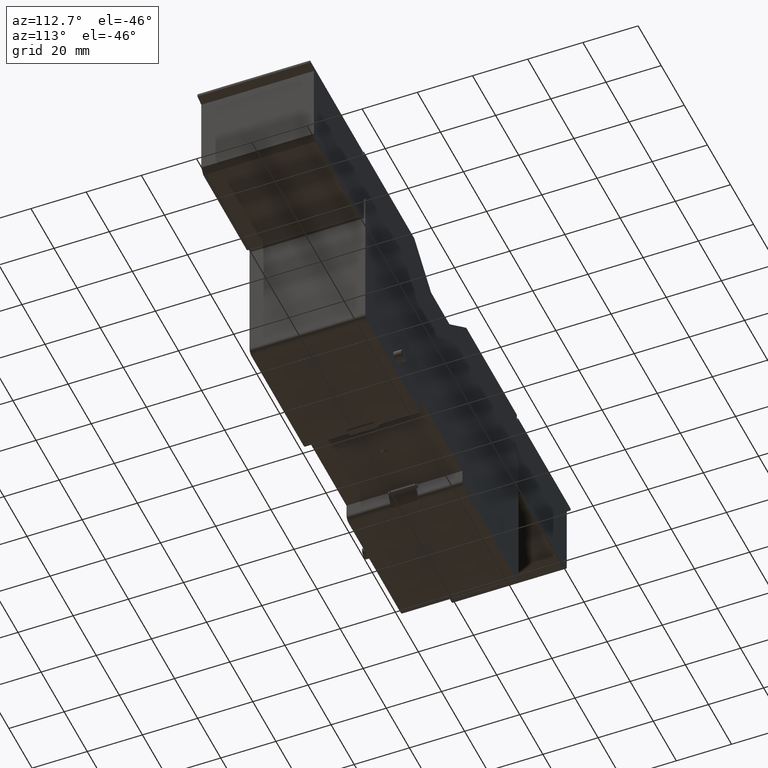
[diagram: clean part render]
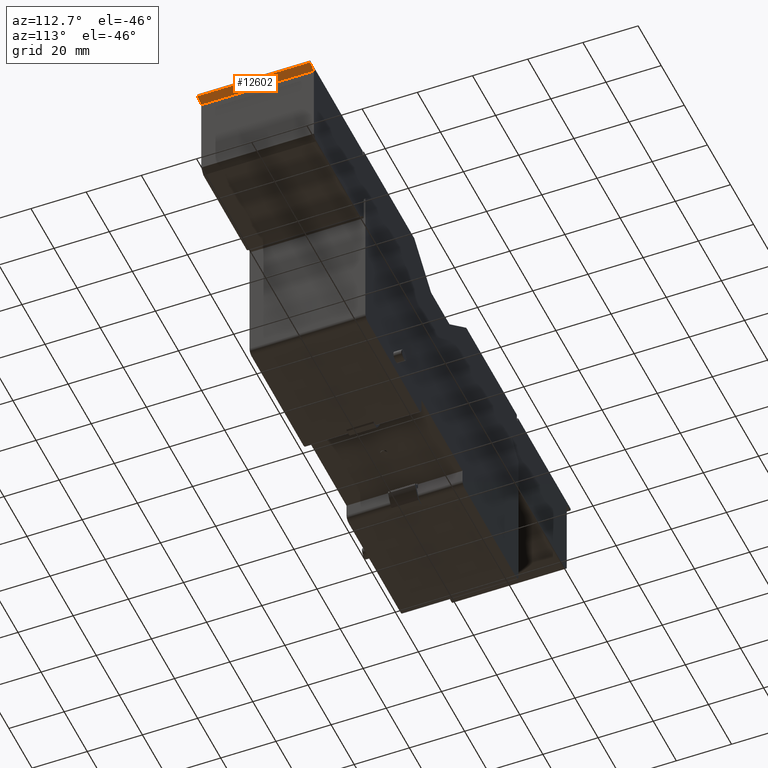
[diagram: same view with one face highlighted and labeled with its STEP entity id]
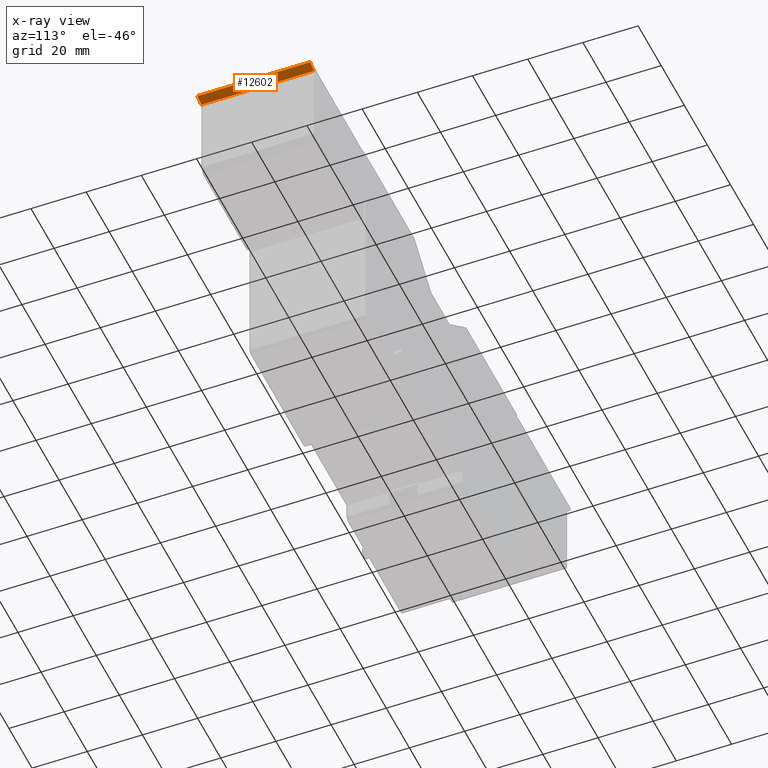
[diagram: x-ray of the same camera — body ghosted, the highlighted face saturated]
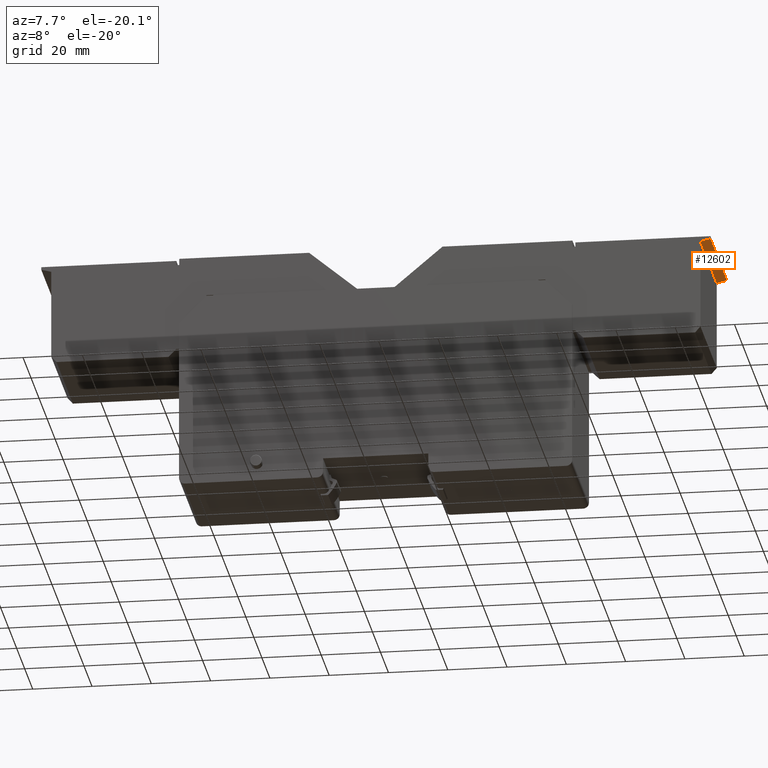
[diagram: same view with one face highlighted and labeled with its STEP entity id]
A machine part, auxiliary view. The second image highlights one B-rep face of the part: STEP entity #12602.
The next image is the same camera in x-ray: the body ghosted, the highlighted face saturated — about 0% of this face is hidden behind the body in this view.
A second angle (auxiliary view) of the same face is appended — the face is thin or edge-on in the first view.
In plain terms, the highlighted planar face has unit normal (0.2588, -0, -0.9659).
Its self-contained STEP definition (entity closure, byte-faithful):
#528=LINE('',#19653,#1820);
#529=LINE('',#19655,#1821);
#530=LINE('',#19657,#1822);
#531=LINE('',#19659,#1823);
#1820=VECTOR('',#16002,1000.);
#1821=VECTOR('',#16005,1000.);
#1822=VECTOR('',#16006,1000.);
#1823=VECTOR('',#16007,1000.);
#3538=ORIENTED_EDGE('',*,*,#7112,.F.);
#3539=ORIENTED_EDGE('',*,*,#7111,.F.);
#3540=ORIENTED_EDGE('',*,*,#7113,.T.);
#3541=ORIENTED_EDGE('',*,*,#7114,.T.);
#7111=EDGE_CURVE('',#8933,#8932,#528,.T.);
#7112=EDGE_CURVE('',#8932,#8934,#529,.T.);
#7113=EDGE_CURVE('',#8933,#8935,#530,.T.);
#7114=EDGE_CURVE('',#8935,#8934,#531,.T.);
#8932=VERTEX_POINT('',#19650);
#8933=VERTEX_POINT('',#19652);
#8934=VERTEX_POINT('',#19656);
#8935=VERTEX_POINT('',#19658);
#10531=EDGE_LOOP('',(#3538,#3539,#3540,#3541));
#11323=FACE_BOUND('',#10531,.T.);
#12046=PLANE('',#14485);
#12602=ADVANCED_FACE('',(#11323),#12046,.T.);
#14485=AXIS2_PLACEMENT_3D('',#19654,#16003,#16004);
#16002=DIRECTION('',(0.,-1.,0.));
#16003=DIRECTION('',(0.25881904510252,0.,-0.965925826289068));
#16004=DIRECTION('',(-0.965925826289069,0.,-0.258819045102521));
#16005=DIRECTION('',(0.965925826289068,0.,0.25881904510252));
#16006=DIRECTION('',(0.965925826289068,0.,0.25881904510252));
#16007=DIRECTION('',(0.,-1.,0.));
#19650=CARTESIAN_POINT('',(109.5,0.6,48.1099999999993));
#19652=CARTESIAN_POINT('',(109.5,41.4,48.1099999999993));
#19653=CARTESIAN_POINT('',(109.5,41.4,48.1099999999993));
#19654=CARTESIAN_POINT('',(109.5,41.4,48.1099999999993));
#19655=CARTESIAN_POINT('',(109.5,0.6,48.1099999999993));
#19656=CARTESIAN_POINT('',(112.858845726812,0.6,49.0099999999993));
#19657=CARTESIAN_POINT('',(109.5,41.4,48.1099999999993));
#19658=CARTESIAN_POINT('',(112.858845726812,41.4,49.0099999999993));
#19659=CARTESIAN_POINT('',(112.858845726812,41.4,49.0099999999993));